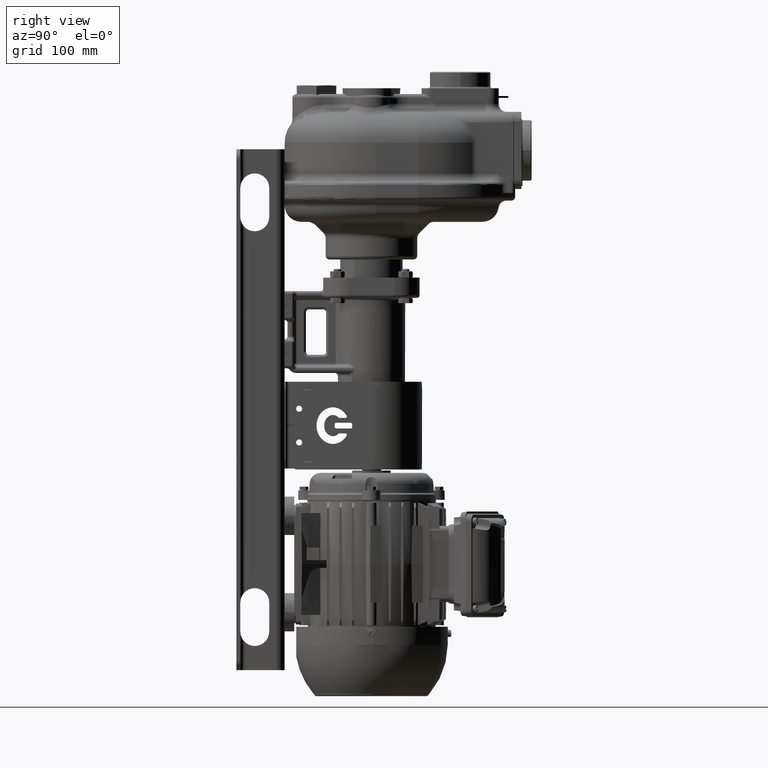
[diagram: clean part render]
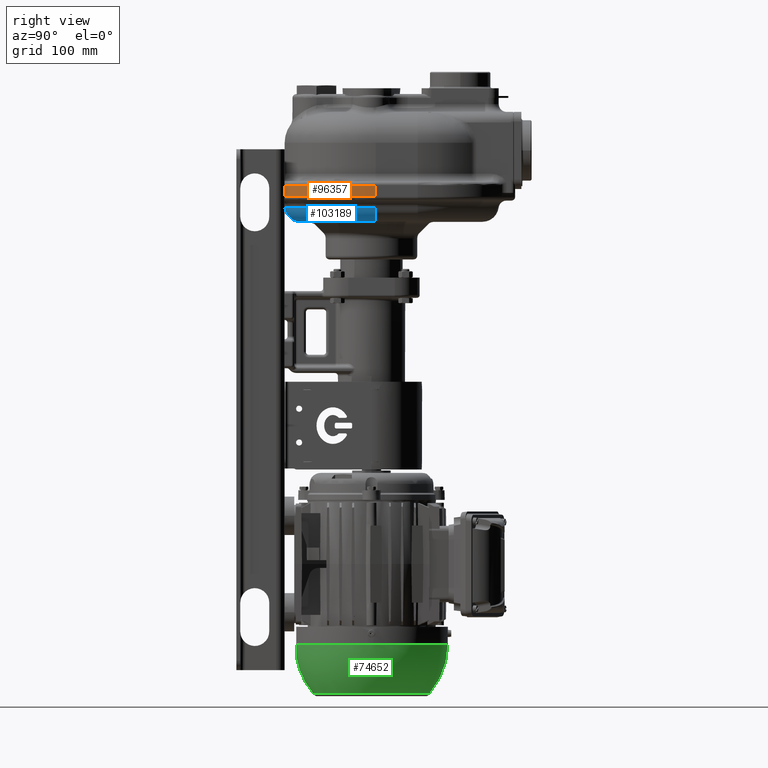
[diagram: same view with three faces highlighted in distinct colors, each labeled with its STEP entity id]
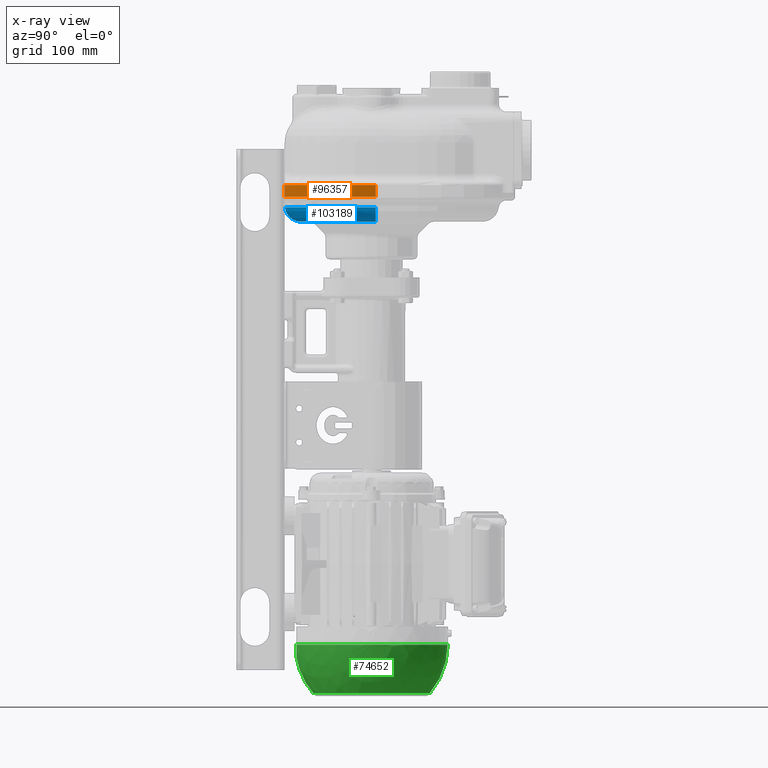
[diagram: x-ray of the same camera — body ghosted, the three highlighted faces saturated]
A machine part, right view with three faces highlighted in distinct colors.
The next image is the same camera in x-ray (body ghosted, the three faces saturated) — at least one of them is partly hidden behind the body in this view.
Their STEP definitions:

[orange] entity #96357 — the highlighted cylindrical surface (partial cylindrical patch) has radius 116.5 mm, axis along (0, 0, -1).
#37459=DIRECTION('',(0.E0,0.E0,-1.E0));
#37460=VECTOR('',#37459,1.2E1);
#37461=CARTESIAN_POINT('',(7.263222438758E1,0.E0,1.248E2));
#37462=LINE('',#37461,#37460);
#37463=CARTESIAN_POINT('',(4.5E0,9.45E1,1.248E2));
#37464=DIRECTION('',(0.E0,0.E0,1.E0));
#37465=DIRECTION('',(5.848259604084E-1,-8.111587982833E-1,0.E0));
#37466=AXIS2_PLACEMENT_3D('',#37463,#37464,#37465);
#37468=DIRECTION('',(0.E0,0.E0,-1.E0));
#37469=VECTOR('',#37468,1.2E1);
#37470=CARTESIAN_POINT('',(1.21E2,9.45E1,1.248E2));
#37471=LINE('',#37470,#37469);
#37472=CARTESIAN_POINT('',(4.5E0,9.45E1,1.128E2));
#37473=DIRECTION('',(0.E0,0.E0,-1.E0));
#37474=DIRECTION('',(1.E0,0.E0,0.E0));
#37475=AXIS2_PLACEMENT_3D('',#37472,#37473,#37474);
#50691=CARTESIAN_POINT('',(1.21E2,9.45E1,1.128E2));
#50692=VERTEX_POINT('',#50691);
#50705=CARTESIAN_POINT('',(1.21E2,9.45E1,1.248E2));
#50707=VERTEX_POINT('',#50705);
#57659=CARTESIAN_POINT('',(7.263222438758E1,0.E0,1.248E2));
#57660=CARTESIAN_POINT('',(7.263222438758E1,0.E0,1.128E2));
#57661=VERTEX_POINT('',#57659);
#57662=VERTEX_POINT('',#57660);
#96343=CARTESIAN_POINT('',(4.5E0,9.45E1,1.188E2));
#96344=DIRECTION('',(0.E0,0.E0,-1.E0));
#96345=DIRECTION('',(7.108433734940E-1,-7.033503382808E-1,0.E0));
#96346=AXIS2_PLACEMENT_3D('',#96343,#96344,#96345);
#96347=CYLINDRICAL_SURFACE('',#96346,1.165E2);
#96348=ORIENTED_EDGE('',*,*,#59122,.F.);
#96350=ORIENTED_EDGE('',*,*,#96349,.T.);
#96352=ORIENTED_EDGE('',*,*,#96351,.T.);
#96354=ORIENTED_EDGE('',*,*,#96353,.T.);
#96355=EDGE_LOOP('',(#96348,#96350,#96352,#96354));
#96356=FACE_OUTER_BOUND('',#96355,.F.);
#96357=ADVANCED_FACE('',(#96356),#96347,.T.);
#37467=CIRCLE('',#37466,1.165E2);
#37476=CIRCLE('',#37475,1.165E2);
#59122=EDGE_CURVE('',#57661,#57662,#37462,.T.);
#96349=EDGE_CURVE('',#57661,#50707,#37467,.T.);
#96351=EDGE_CURVE('',#50707,#50692,#37471,.T.);
#96353=EDGE_CURVE('',#50692,#57662,#37476,.T.);

[blue] entity #103189 — the highlighted toroidal blend (fillet) surface has major radius 77.5 mm and minor (blend) radius 17 mm.
#42454=CARTESIAN_POINT('',(4.5E0,1.7E1,1.038E2));
#42455=DIRECTION('',(-1.E0,0.E0,0.E0));
#42456=DIRECTION('',(0.E0,0.E0,-1.E0));
#42457=AXIS2_PLACEMENT_3D('',#42454,#42455,#42456);
#42508=CARTESIAN_POINT('',(4.5E0,9.45E1,1.0176E2));
#42509=DIRECTION('',(0.E0,0.E0,1.E0));
#42510=DIRECTION('',(0.E0,-1.E0,0.E0));
#42511=AXIS2_PLACEMENT_3D('',#42508,#42509,#42510);
#42513=CARTESIAN_POINT('',(8.2E1,9.45E1,1.038E2));
#42514=DIRECTION('',(0.E0,-1.E0,0.E0));
#42515=DIRECTION('',(0.E0,0.E0,-1.E0));
#42516=AXIS2_PLACEMENT_3D('',#42513,#42514,#42515);
#42523=CARTESIAN_POINT('',(4.5E0,9.45E1,8.68E1));
#42524=DIRECTION('',(0.E0,0.E0,-1.E0));
#42525=DIRECTION('',(1.E0,0.E0,0.E0));
#42526=AXIS2_PLACEMENT_3D('',#42523,#42524,#42525);
#50611=CARTESIAN_POINT('',(8.2E1,9.45E1,8.68E1));
#50612=VERTEX_POINT('',#50611);
#50613=CARTESIAN_POINT('',(4.5E0,1.7E1,8.68E1));
#50614=VERTEX_POINT('',#50613);
#50626=CARTESIAN_POINT('',(4.5E0,1.228438414524E-1,1.0176E2));
#50628=VERTEX_POINT('',#50626);
#50629=CARTESIAN_POINT('',(9.887715615855E1,9.45E1,1.0176E2));
#50630=VERTEX_POINT('',#50629);
#103177=CARTESIAN_POINT('',(4.5E0,9.45E1,1.038E2));
#103178=DIRECTION('',(0.E0,0.E0,-1.E0));
#103179=DIRECTION('',(9.999999867615E-1,1.627174595994E-4,0.E0));
#103180=AXIS2_PLACEMENT_3D('',#103177,#103178,#103179);
#103181=TOROIDAL_SURFACE('',#103180,7.75E1,1.7E1);
#103182=ORIENTED_EDGE('',*,*,#102863,.T.);
#103183=ORIENTED_EDGE('',*,*,#102894,.F.);
#103185=ORIENTED_EDGE('',*,*,#103184,.T.);
#103186=ORIENTED_EDGE('',*,*,#103154,.T.);
#103187=EDGE_LOOP('',(#103182,#103183,#103185,#103186));
#103188=FACE_OUTER_BOUND('',#103187,.F.);
#103189=ADVANCED_FACE('',(#103188),#103181,.T.);
#42458=CIRCLE('',#42457,1.7E1);
#42512=CIRCLE('',#42511,9.437715615855E1);
#42517=CIRCLE('',#42516,1.7E1);
#42527=CIRCLE('',#42526,7.75E1);
#102863=EDGE_CURVE('',#50628,#50630,#42512,.T.);
#102894=EDGE_CURVE('',#50612,#50630,#42517,.T.);
#103154=EDGE_CURVE('',#50614,#50628,#42458,.T.);
#103184=EDGE_CURVE('',#50612,#50614,#42527,.T.);

[green] entity #74652 — the highlighted spherical surface has radius 79.0899 mm.
#18882=CARTESIAN_POINT('',(2.131628207280E-14,1.2E1,-3.51E2));
#18883=DIRECTION('',(0.E0,1.E0,0.E0));
#18884=DIRECTION('',(9.986079289839E-1,0.E0,-5.274660340198E-2));
#18885=AXIS2_PLACEMENT_3D('',#18882,#18883,#18884);
#18892=CARTESIAN_POINT('',(7.908689326264E1,9.E1,-3.516901808615E2));
#18893=CARTESIAN_POINT('',(7.908682987687E1,8.997899000365E1,
-3.516974441507E2));
#18894=CARTESIAN_POINT('',(7.908669623117E1,8.993555144664E1,-3.517108396E2));
#18895=CARTESIAN_POINT('',(7.908646375481E1,8.986626048210E1,
-3.517276709700E2));
#18896=CARTESIAN_POINT('',(7.908619109393E1,8.979246872316E1,
-3.517408457848E2));
#18897=CARTESIAN_POINT('',(7.908586553230E1,8.971350572975E1,
-3.517500882727E2));
#18898=CARTESIAN_POINT('',(7.908547230643E1,8.962863757423E1,
-3.517550067064E2));
#18899=CARTESIAN_POINT('',(7.908498368785E1,8.953564068762E1,
-3.517550125398E2));
#18900=CARTESIAN_POINT('',(7.908437343722E1,8.943357925235E1,
-3.517494618817E2));
#18901=CARTESIAN_POINT('',(7.908353869046E1,8.931262413936E1,
-3.517362757950E2));
#18902=CARTESIAN_POINT('',(7.908249760626E1,8.918499617632E1,
-3.517160922829E2));
#18903=CARTESIAN_POINT('',(7.908149202691E1,8.907788402035E1,
-3.516954125256E2));
#18904=CARTESIAN_POINT('',(7.908049172536E1,8.898370844721E1,
-3.516774183077E2));
#18905=CARTESIAN_POINT('',(7.907940585956E1,8.889553169216E1,
-3.516662462688E2));
#18906=CARTESIAN_POINT('',(7.907821495128E1,8.880987348656E1,
-3.516600249766E2));
#18907=CARTESIAN_POINT('',(7.907706065764E1,8.873472212557E1,
-3.516582850464E2));
#18908=CARTESIAN_POINT('',(7.907587626701E1,8.866335687528E1,
-3.516593842735E2));
#18909=CARTESIAN_POINT('',(7.907465218841E1,8.859443800190E1,
-3.516627008776E2));
#18910=CARTESIAN_POINT('',(7.907331161149E1,8.852331500502E1,
-3.516678993200E2));
#18911=CARTESIAN_POINT('',(7.907176615173E1,8.844568769889E1,
-3.516749766195E2));
#18912=CARTESIAN_POINT('',(7.906987029534E1,8.835556362819E1,
-3.516835350514E2));
#18913=CARTESIAN_POINT('',(7.906798401749E1,8.827016627343E1,
-3.516905195795E2));
#18914=CARTESIAN_POINT('',(7.906618451340E1,8.819092448620E1,
-3.516934111742E2));
#18915=CARTESIAN_POINT('',(7.906439022785E1,8.811347684294E1,
-3.516914497047E2));
#18916=CARTESIAN_POINT('',(7.906271643080E1,8.804298901811E1,
-3.516867175382E2));
#18917=CARTESIAN_POINT('',(7.906103769609E1,8.797481014122E1,
-3.516823390514E2));
#18918=CARTESIAN_POINT('',(7.905923927455E1,8.790501932797E1,
-3.516801377521E2));
#18919=CARTESIAN_POINT('',(7.905725228952E1,8.783090572760E1,
-3.516789812662E2));
#18920=CARTESIAN_POINT('',(7.905508242865E1,8.775315011533E1,
-3.516787874327E2));
#18921=CARTESIAN_POINT('',(7.905286367264E1,8.767667863027E1,
-3.516797713957E2));
#18922=CARTESIAN_POINT('',(7.905039435942E1,8.759459559941E1,
-3.516817702114E2));
#18923=CARTESIAN_POINT('',(7.904744498420E1,8.750015850923E1,
-3.516847119034E2));
#18924=CARTESIAN_POINT('',(7.904382279585E1,8.738899038515E1,
-3.516887302257E2));
#18925=CARTESIAN_POINT('',(7.903975076316E1,8.726912717024E1,
-3.516913474312E2));
#18926=CARTESIAN_POINT('',(7.903571848529E1,8.715475497385E1,
-3.516903078374E2));
#18927=CARTESIAN_POINT('',(7.903222266385E1,8.705900620493E1,
-3.516884638516E2));
#18928=CARTESIAN_POINT('',(7.902898426705E1,8.697292777744E1,
-3.516870035254E2));
#18929=CARTESIAN_POINT('',(7.902555557257E1,8.688453899841E1,
-3.516865557557E2));
#18930=CARTESIAN_POINT('',(7.902157546948E1,8.678505884697E1,
-3.516868144999E2));
#18931=CARTESIAN_POINT('',(7.901674063522E1,8.666833341527E1,
-3.516876008008E2));
#18932=CARTESIAN_POINT('',(7.901120680877E1,8.653973802312E1,
-3.516891218008E2));
#18933=CARTESIAN_POINT('',(7.900471405021E1,8.639451662746E1,
-3.516906622616E2));
#18934=CARTESIAN_POINT('',(7.899697094737E1,8.622847495049E1,
-3.516902995012E2));
#18935=CARTESIAN_POINT('',(7.898910173939E1,8.606705923127E1,
-3.516892316936E2));
#18936=CARTESIAN_POINT('',(7.898134696563E1,8.591429198482E1,
-3.516886086602E2));
#18937=CARTESIAN_POINT('',(7.897359808070E1,8.576718134135E1,
-3.516889656720E2));
#18938=CARTESIAN_POINT('',(7.896470189765E1,8.560413063590E1,
-3.516898454020E2));
#18939=CARTESIAN_POINT('',(7.895380126724E1,8.541235236724E1,
-3.516906325273E2));
#18940=CARTESIAN_POINT('',(7.894192635619E1,8.521225595462E1,
-3.516902720910E2));
#18941=CARTESIAN_POINT('',(7.892932372475E1,8.500863545662E1,
-3.516892807466E2));
#18942=CARTESIAN_POINT('',(7.891597948701E1,8.480184845467E1,
-3.516896263448E2));
#18943=CARTESIAN_POINT('',(7.890082995039E1,8.457645875736E1,
-3.516904046557E2));
#18944=CARTESIAN_POINT('',(7.888266003881E1,8.431772081859E1,
-3.516899988363E2));
#18945=CARTESIAN_POINT('',(7.886103270877E1,8.402444133799E1,
-3.516897558218E2));
#18946=CARTESIAN_POINT('',(7.883526014692E1,8.369288933269E1,
-3.516903072801E2));
#18947=CARTESIAN_POINT('',(7.880450730851E1,8.331868593147E1,
-3.516898919632E2));
#18948=CARTESIAN_POINT('',(7.876738106705E1,8.289331966384E1,
-3.516901444224E2));
#18949=CARTESIAN_POINT('',(7.872267996120E1,8.241293295785E1,
-3.516902730432E2));
#18950=CARTESIAN_POINT('',(7.866856615241E1,8.186942997381E1,
-3.516899420197E2));
#18951=CARTESIAN_POINT('',(7.860271426764E1,8.125395252241E1,
-3.516902189152E2));
#18952=CARTESIAN_POINT('',(7.852282709654E1,8.056156437867E1,
-3.516902462252E2));
#18953=CARTESIAN_POINT('',(7.842555332448E1,7.978239233898E1,
-3.516901989612E2));
#18954=CARTESIAN_POINT('',(7.830714418676E1,7.890868171206E1,
-3.516902005105E2));
#18955=CARTESIAN_POINT('',(7.816284783154E1,7.793059703707E1,
-3.516902091577E2));
#18956=CARTESIAN_POINT('',(7.798597530537E1,7.683228242591E1,
-3.516901935847E2));
#18957=CARTESIAN_POINT('',(7.776746155738E1,7.559329971117E1,
-3.516901400151E2));
#18958=CARTESIAN_POINT('',(7.749456903589E1,7.418473427657E1,
-3.516902094501E2));
#18959=CARTESIAN_POINT('',(7.715145316447E1,7.258294807775E1,
-3.516901744396E2));
#18960=CARTESIAN_POINT('',(7.675562772584E1,7.091371074955E1,
-3.516901748782E2));
#18961=CARTESIAN_POINT('',(7.632806126970E1,6.927026314869E1,
-3.516901757550E2));
#18962=CARTESIAN_POINT('',(7.586483582699E1,6.763419777764E1,
-3.516901767705E2));
#18963=CARTESIAN_POINT('',(7.536625456212E1,6.600774736345E1,
-3.516901784005E2));
#18964=CARTESIAN_POINT('',(7.483307485766E1,6.439313525870E1,
-3.516901788519E2));
#18965=CARTESIAN_POINT('',(7.426516894339E1,6.278997398675E1,
-3.516901794485E2));
#18966=CARTESIAN_POINT('',(7.366298211758E1,6.119955329552E1,
-3.516901799330E2));
#18967=CARTESIAN_POINT('',(7.302671807411E1,5.962238985457E1,
-3.516901803337E2));
#18968=CARTESIAN_POINT('',(7.235669813731E1,5.805929011690E1,
-3.516901805723E2));
#18969=CARTESIAN_POINT('',(7.165322316339E1,5.651095197430E1,
-3.516901806848E2));
#18970=CARTESIAN_POINT('',(7.091662101596E1,5.497809848205E1,
-3.516901807275E2));
#18971=CARTESIAN_POINT('',(7.014723157635E1,5.346143645372E1,
-3.516901807652E2));
#18972=CARTESIAN_POINT('',(6.934541069907E1,5.196166751468E1,
-3.516901808091E2));
#18973=CARTESIAN_POINT('',(6.851152907950E1,5.047948499144E1,
-3.516901808606E2));
#18974=CARTESIAN_POINT('',(6.764597224256E1,4.901557414575E1,
-3.516901809150E2));
#18975=CARTESIAN_POINT('',(6.674914036956E1,4.757061179907E1,
-3.516901809659E2));
#18976=CARTESIAN_POINT('',(6.582144809429E1,4.614526600361E1,
-3.516901810067E2));
#18977=CARTESIAN_POINT('',(6.486332432112E1,4.474019574614E1,
-3.516901810328E2));
#18978=CARTESIAN_POINT('',(6.387521202431E1,4.335605063970E1,
-3.516901810389E2));
#18979=CARTESIAN_POINT('',(6.285756803964E1,4.199347061875E1,
-3.516901810299E2));
#18980=CARTESIAN_POINT('',(6.181086286004E1,4.065308565269E1,
-3.516901810201E2));
#18981=CARTESIAN_POINT('',(6.073558041263E1,3.933551544669E1,
-3.516901810134E2));
#18982=CARTESIAN_POINT('',(5.963221783727E1,3.804136915851E1,
-3.516901810111E2));
#18983=CARTESIAN_POINT('',(5.850128525580E1,3.677124511570E1,
-3.516901810121E2));
#18984=CARTESIAN_POINT('',(5.734330553660E1,3.552573053957E1,
-3.516901810146E2));
#18985=CARTESIAN_POINT('',(5.615881405382E1,3.430540127467E1,
-3.516901810163E2));
#18986=CARTESIAN_POINT('',(5.494835843836E1,3.311082152080E1,
-3.516901810152E2));
#18987=CARTESIAN_POINT('',(5.371249832385E1,3.194254357166E1,
-3.516901810092E2));
#18988=CARTESIAN_POINT('',(5.245180509163E1,3.080110756305E1,
-3.516901809984E2));
#18989=CARTESIAN_POINT('',(5.116686160274E1,2.968704121937E1,
-3.516901809875E2));
#18990=CARTESIAN_POINT('',(4.985826193046E1,2.860085961160E1,
-3.516901809780E2));
#18991=CARTESIAN_POINT('',(4.852661108495E1,2.754306491845E1,
-3.516901809704E2));
#18992=CARTESIAN_POINT('',(4.717252473370E1,2.651414619439E1,
-3.516901809647E2));
#18993=CARTESIAN_POINT('',(4.579662891704E1,2.551457914366E1,
-3.516901809602E2));
#18994=CARTESIAN_POINT('',(4.439955975847E1,2.454482590013E1,
-3.516901809560E2));
#18995=CARTESIAN_POINT('',(4.298196317065E1,2.360533481375E1,
-3.516901809512E2));
#18996=CARTESIAN_POINT('',(4.154449455681E1,2.269654024328E1,
-3.516901809450E2));
#18997=CARTESIAN_POINT('',(4.008781850762E1,2.181886235536E1,
-3.516901809369E2));
#18998=CARTESIAN_POINT('',(3.861260849410E1,2.097270693045E1,
-3.516901809287E2));
#18999=CARTESIAN_POINT('',(3.711954655604E1,2.015846517500E1,
-3.516901809213E2));
#19000=CARTESIAN_POINT('',(3.560932298688E1,1.937651354073E1,
-3.516901809150E2));
#19001=CARTESIAN_POINT('',(3.408263601447E1,1.862721355054E1,
-3.516901809096E2));
#19002=CARTESIAN_POINT('',(3.254019147814E1,1.791091163133E1,
-3.516901809051E2));
#19003=CARTESIAN_POINT('',(3.098270250262E1,1.722793895388E1,
-3.516901809010E2));
#19004=CARTESIAN_POINT('',(2.941088916806E1,1.657861127970E1,
-3.516901808970E2));
#19005=CARTESIAN_POINT('',(2.782547817680E1,1.596322881494E1,
-3.516901808925E2));
#19006=CARTESIAN_POINT('',(2.622720252126E1,1.538207607286E1,
-3.516901808872E2));
#19007=CARTESIAN_POINT('',(2.461680113168E1,1.483542173779E1,
-3.516901808820E2));
#19008=CARTESIAN_POINT('',(2.299501856204E1,1.432351855015E1,
-3.516901808770E2));
#19009=CARTESIAN_POINT('',(2.136260460790E1,1.384660317706E1,
-3.516901808738E2));
#19010=CARTESIAN_POINT('',(1.972031399449E1,1.340489611424E1,
-3.516901808683E2));
#19011=CARTESIAN_POINT('',(1.806890600776E1,1.299860157767E1,
-3.516901808708E2));
#19012=CARTESIAN_POINT('',(1.640914415016E1,1.262790741119E1,
-3.516901808584E2));
#19013=CARTESIAN_POINT('',(1.474179580742E1,1.229298500357E1,
-3.516901808713E2));
#19014=CARTESIAN_POINT('',(1.362568648454E1,1.209365446394E1,
-3.516901808654E2));
#19015=CARTESIAN_POINT('',(1.306662488693E1,1.2E1,-3.516901808615E2));
#19017=CARTESIAN_POINT('',(0.E0,1.690868932626E2,-3.516901808615E2));
#19018=CARTESIAN_POINT('',(5.640218381500E-1,1.690868932626E2,
-3.516901808645E2));
#19019=CARTESIAN_POINT('',(1.692065512500E0,1.690748255448E2,
-3.516901808687E2));
#19020=CARTESIAN_POINT('',(3.383356509321E0,1.690205291009E2,
-3.516901808560E2));
#19021=CARTESIAN_POINT('',(5.073098864071E0,1.689300626414E2,
-3.516901808662E2));
#19022=CARTESIAN_POINT('',(6.760519112154E0,1.688034675759E2,
-3.516901808633E2));
#19023=CARTESIAN_POINT('',(8.444844869898E0,1.686408018511E2,
-3.516901808676E2));
#19024=CARTESIAN_POINT('',(1.012530517780E1,1.684421399231E2,
-3.516901808698E2));
#19025=CARTESIAN_POINT('',(1.180113083418E1,1.682075727259E2,
-3.516901808734E2));
#19026=CARTESIAN_POINT('',(1.347155476835E1,1.679372076274E2,
-3.516901808768E2));
#19027=CARTESIAN_POINT('',(1.513581237171E1,1.676311683828E2,
-3.516901808797E2));
#19028=CARTESIAN_POINT('',(1.679314187592E1,1.672895950732E2,
-3.516901808818E2));
#19029=CARTESIAN_POINT('',(1.844278466349E1,1.669126440482E2,
-3.516901808836E2));
#19030=CARTESIAN_POINT('',(2.008398564708E1,1.665004878491E2,
-3.516901808854E2));
#19031=CARTESIAN_POINT('',(2.171599360152E1,1.660533151317E2,
-3.516901808872E2));
#19032=CARTESIAN_POINT('',(2.333806150819E1,1.655713305802E2,
-3.516901808892E2));
#19033=CARTESIAN_POINT('',(2.494944689957E1,1.650547548129E2,
-3.516901808913E2));
#19034=CARTESIAN_POINT('',(2.654941219688E1,1.645038242818E2,
-3.516901808932E2));
#19035=CARTESIAN_POINT('',(2.813722504907E1,1.639187911641E2,
-3.516901808944E2));
#19036=CARTESIAN_POINT('',(2.971215866775E1,1.632999232463E2,
-3.516901808937E2));
#19037=CARTESIAN_POINT('',(3.127349215945E1,1.626475038028E2,
-3.516901808916E2));
#19038=CARTESIAN_POINT('',(3.282051085612E1,1.619618314648E2,
-3.516901808886E2));
#19039=CARTESIAN_POINT('',(3.435250664184E1,1.612432200848E2,
-3.516901808851E2));
#19040=CARTESIAN_POINT('',(3.586877827721E1,1.604919985923E2,
-3.516901808815E2));
#19041=CARTESIAN_POINT('',(3.736863172020E1,1.597085108434E2,
-3.516901808779E2));
#19042=CARTESIAN_POINT('',(3.885138044384E1,1.588931154634E2,
-3.516901808740E2));
#19043=CARTESIAN_POINT('',(4.031634575059E1,1.580461856827E2,
-3.516901808693E2));
#19044=CARTESIAN_POINT('',(4.176285708281E1,1.571681091660E2,
-3.516901808620E2));
#19045=CARTESIAN_POINT('',(4.319025232979E1,1.562592878347E2,
-3.516901808509E2));
#19046=CARTESIAN_POINT('',(4.459787813105E1,1.553201376828E2,
-3.516901808375E2));
#19047=CARTESIAN_POINT('',(4.598509017423E1,1.543510885874E2,
-3.516901808225E2));
#19048=CARTESIAN_POINT('',(4.735125349312E1,1.533525841096E2,
-3.516901808069E2));
#19049=CARTESIAN_POINT('',(4.869574275306E1,1.523250812955E2,
-3.516901807914E2));
#19050=CARTESIAN_POINT('',(5.001794254191E1,1.512690504631E2,
-3.516901807762E2));
#19051=CARTESIAN_POINT('',(5.131724765272E1,1.501849749867E2,
-3.516901807605E2));
#19052=CARTESIAN_POINT('',(5.259306335176E1,1.490733510824E2,
-3.516901807426E2));
#19053=CARTESIAN_POINT('',(5.384480566280E1,1.479346875714E2,
-3.516901807175E2));
#19054=CARTESIAN_POINT('',(5.507190162614E1,1.467695056539E2,
-3.516901806861E2));
#19055=CARTESIAN_POINT('',(5.627378956395E1,1.455783386677E2,
-3.516901806510E2));
#19056=CARTESIAN_POINT('',(5.744991933700E1,1.443617318449E2,
-3.516901806147E2));
#19057=CARTESIAN_POINT('',(5.859975259587E1,1.431202420623E2,
-3.516901805797E2));
#19058=CARTESIAN_POINT('',(5.972276302832E1,1.418544375860E2,
-3.516901805481E2));
#19059=CARTESIAN_POINT('',(6.081843659988E1,1.405648978114E2,
-3.516901805206E2));
#19060=CARTESIAN_POINT('',(6.188627178787E1,1.392522129997E2,
-3.516901804955E2));
#19061=CARTESIAN_POINT('',(6.292577981216E1,1.379169840061E2,
-3.516901804642E2));
#19062=CARTESIAN_POINT('',(6.393648486137E1,1.365598220019E2,
-3.516901804177E2));
#19063=CARTESIAN_POINT('',(6.491792430473E1,1.351813482016E2,
-3.516901803643E2));
#19064=CARTESIAN_POINT('',(6.586964890862E1,1.337821935731E2,
-3.516901803119E2));
#19065=CARTESIAN_POINT('',(6.679122304091E1,1.323629985503E2,
-3.516901802709E2));
#19066=CARTESIAN_POINT('',(6.768222486934E1,1.309244127414E2,
-3.516901802529E2));
#19067=CARTESIAN_POINT('',(6.854224655643E1,1.294670946295E2,
-3.516901802696E2));
#19068=CARTESIAN_POINT('',(6.937089444590E1,1.279917112683E2,
-3.516901803282E2));
#19069=CARTESIAN_POINT('',(7.016778922796E1,1.264989380160E2,
-3.516901804288E2));
#19070=CARTESIAN_POINT('',(7.093256620532E1,1.249894580150E2,
-3.516901805327E2));
#19071=CARTESIAN_POINT('',(7.166487507412E1,1.234639627397E2,
-3.516901806448E2));
#19072=CARTESIAN_POINT('',(7.236438141445E1,1.219231487063E2,
-3.516901808130E2));
#19073=CARTESIAN_POINT('',(7.303076281501E1,1.203677262164E2,
-3.516901810329E2));
#19074=CARTESIAN_POINT('',(7.366371982445E1,1.187983948122E2,
-3.516901813639E2));
#19075=CARTESIAN_POINT('',(7.426295140902E1,1.172158960160E2,
-3.516901818386E2));
#19076=CARTESIAN_POINT('',(7.482819719880E1,1.156209407531E2,
-3.516901824679E2));
#19077=CARTESIAN_POINT('',(7.535921936275E1,1.140141096778E2,
-3.516901834111E2));
#19078=CARTESIAN_POINT('',(7.585554580318E1,1.123971329545E2,
-3.516901842856E2));
#19079=CARTESIAN_POINT('',(7.631798005449E1,1.107665232514E2,
-3.516901873887E2));
#19080=CARTESIAN_POINT('',(7.674284241570E1,1.091373402079E2,
-3.516901822729E2));
#19081=CARTESIAN_POINT('',(7.713943173452E1,1.074702547120E2,
-3.516901982745E2));
#19082=CARTESIAN_POINT('',(7.748375075025E1,1.058682151296E2,
-3.516901478528E2));
#19083=CARTESIAN_POINT('',(7.775735915173E1,1.044608939447E2,
-3.516901890554E2));
#19084=CARTESIAN_POINT('',(7.797489938979E1,1.032329369081E2,
-3.516901716468E2));
#19085=CARTESIAN_POINT('',(7.815245113356E1,1.021364680246E2,
-3.516901312717E2));
#19086=CARTESIAN_POINT('',(7.829631382325E1,1.011671544733E2,
-3.516901834128E2));
#19087=CARTESIAN_POINT('',(7.841348288930E1,1.003093009144E2,
-3.516902093981E2));
#19088=CARTESIAN_POINT('',(7.850881995880E1,9.955358884153E1,
-3.516902260493E2));
#19089=CARTESIAN_POINT('',(7.858663244763E1,9.888867419231E1,
-3.516901524922E2));
#19090=CARTESIAN_POINT('',(7.865028828066E1,9.830477760113E1,
-3.516900895238E2));
#19091=CARTESIAN_POINT('',(7.870255152886E1,9.779246563866E1,
-3.516900279357E2));
#19092=CARTESIAN_POINT('',(7.874568849782E1,9.734255308116E1,
-3.516899116745E2));
#19093=CARTESIAN_POINT('',(7.878142645702E1,9.694761273750E1,
-3.516902179477E2));
#19094=CARTESIAN_POINT('',(7.881115422E1,9.660101248826E1,-3.516904054176E2));
#19095=CARTESIAN_POINT('',(7.883583708252E1,9.629875459545E1,
-3.516901087081E2));
#19096=CARTESIAN_POINT('',(7.885679170334E1,9.603043008204E1,
-3.516896477576E2));
#19097=CARTESIAN_POINT('',(7.887558368355E1,9.577921768561E1,
-3.516899575653E2));
#19098=CARTESIAN_POINT('',(7.889249410214E1,9.554324638905E1,
-3.516904340609E2));
#19099=CARTESIAN_POINT('',(7.890705422637E1,9.533168242978E1,
-3.516901358676E2));
#19100=CARTESIAN_POINT('',(7.891974566184E1,9.514032791187E1,
-3.516895182813E2));
#19101=CARTESIAN_POINT('',(7.893166019643E1,9.495404771081E1,
-3.516894070341E2));
#19102=CARTESIAN_POINT('',(7.894338925805E1,9.476346197739E1,
-3.516900491988E2));
#19103=CARTESIAN_POINT('',(7.895492322506E1,9.456829961620E1,
-3.516906488118E2));
#19104=CARTESIAN_POINT('',(7.896614819188E1,9.436989144805E1,
-3.516906042866E2));
#19105=CARTESIAN_POINT('',(7.897583746759E1,9.419078058343E1,
-3.516900947235E2));
#19106=CARTESIAN_POINT('',(7.898346035373E1,9.404435159314E1,
-3.516894701381E2));
#19107=CARTESIAN_POINT('',(7.899016581027E1,9.391121630267E1,
-3.516893030730E2));
#19108=CARTESIAN_POINT('',(7.899686623675E1,9.377348879856E1,
-3.516896089469E2));
#19109=CARTESIAN_POINT('',(7.900355744723E1,9.363062136431E1,
-3.516903040491E2));
#19110=CARTESIAN_POINT('',(7.901008971099E1,9.348556914658E1,
-3.516903244424E2));
#19111=CARTESIAN_POINT('',(7.901617300322E1,9.334473008377E1,
-3.516901195710E2));
#19112=CARTESIAN_POINT('',(7.902143175661E1,9.321787316790E1,
-3.516902543764E2));
#19113=CARTESIAN_POINT('',(7.902602852738E1,9.310280511398E1,
-3.516903366445E2));
#19114=CARTESIAN_POINT('',(7.903017689170E1,9.299536294949E1,
-3.516895913153E2));
#19115=CARTESIAN_POINT('',(7.903383409169E1,9.289724158235E1,
-3.516891550997E2));
#19116=CARTESIAN_POINT('',(7.903694238444E1,9.281092032067E1,
-3.516896872906E2));
#19117=CARTESIAN_POINT('',(7.903959709346E1,9.273502327275E1,
-3.516902735238E2));
#19118=CARTESIAN_POINT('',(7.904191423567E1,9.266715728112E1,
-3.516902826949E2));
#19119=CARTESIAN_POINT('',(7.904396783236E1,9.260566407419E1,
-3.516898059603E2));
#19120=CARTESIAN_POINT('',(7.904576399187E1,9.255058769494E1,
-3.516896592502E2));
#19121=CARTESIAN_POINT('',(7.904731598954E1,9.250181645320E1,
-3.516902728287E2));
#19122=CARTESIAN_POINT('',(7.904865151480E1,9.245909886239E1,
-3.516907244168E2));
#19123=CARTESIAN_POINT('',(7.904982863216E1,9.242085299060E1,
-3.516910458796E2));
#19124=CARTESIAN_POINT('',(7.905090095852E1,9.238563018041E1,
-3.516908346209E2));
#19125=CARTESIAN_POINT('',(7.905191707175E1,9.235186310288E1,
-3.516903337029E2));
#19126=CARTESIAN_POINT('',(7.905293547133E1,9.231829846671E1,
-3.516872388257E2));
#19127=CARTESIAN_POINT('',(7.905390565636E1,9.228593155617E1,
-3.516840461212E2));
#19128=CARTESIAN_POINT('',(7.905480500504E1,9.225549889419E1,
-3.516811323323E2));
#19129=CARTESIAN_POINT('',(7.905564844362E1,9.222638719268E1,
-3.516790299336E2));
#19130=CARTESIAN_POINT('',(7.905644779919E1,9.219810610099E1,
-3.516781129526E2));
#19131=CARTESIAN_POINT('',(7.905723520661E1,9.216959596926E1,
-3.516781420032E2));
#19132=CARTESIAN_POINT('',(7.905804598300E1,9.213963653637E1,
-3.516788273499E2));
#19133=CARTESIAN_POINT('',(7.905891110133E1,9.210706614460E1,
-3.516799850195E2));
#19134=CARTESIAN_POINT('',(7.905986379394E1,9.207064564043E1,
-3.516811579935E2));
#19135=CARTESIAN_POINT('',(7.906091532274E1,9.202969274106E1,
-3.516824499707E2));
#19136=CARTESIAN_POINT('',(7.906206635460E1,9.198369853277E1,
-3.516844411919E2));
#19137=CARTESIAN_POINT('',(7.906331332420E1,9.193210420871E1,
-3.516881119450E2));
#19138=CARTESIAN_POINT('',(7.906469041808E1,9.187350004085E1,
-3.516921529502E2));
#19139=CARTESIAN_POINT('',(7.906624650344E1,9.180630401899E1,
-3.516933107512E2));
#19140=CARTESIAN_POINT('',(7.906796288528E1,9.173072888453E1,
-3.516906158564E2));
#19141=CARTESIAN_POINT('',(7.906982332108E1,9.164648670635E1,
-3.516840503017E2));
#19142=CARTESIAN_POINT('',(7.907182992474E1,9.155131713921E1,
-3.516749258009E2));
#19143=CARTESIAN_POINT('',(7.907368475231E1,9.145752503485E1,
-3.516664924177E2));
#19144=CARTESIAN_POINT('',(7.907523058166E1,9.137371442314E1,
-3.516610035232E2));
#19145=CARTESIAN_POINT('',(7.907667383836E1,9.128957260018E1,
-3.516582692630E2));
#19146=CARTESIAN_POINT('',(7.907811984087E1,9.119706603556E1,
-3.516595081192E2));
#19147=CARTESIAN_POINT('',(7.907940987822E1,9.110426243373E1,
-3.516661824506E2));
#19148=CARTESIAN_POINT('',(7.908049428906E1,9.101628300288E1,
-3.516771781021E2));
#19149=CARTESIAN_POINT('',(7.908152320569E1,9.091925226702E1,
-3.516957939430E2));
#19150=CARTESIAN_POINT('',(7.908253893458E1,9.081063446040E1,
-3.517165613036E2));
#19151=CARTESIAN_POINT('',(7.908357618854E1,9.068261626561E1,
-3.517366471090E2));
#19152=CARTESIAN_POINT('',(7.908439443184E1,9.056342450189E1,
-3.517494347780E2));
#19153=CARTESIAN_POINT('',(7.908499995423E1,9.046179212322E1,
-3.517548583163E2));
#19154=CARTESIAN_POINT('',(7.908548313254E1,9.036947380919E1,
-3.517547498232E2));
#19155=CARTESIAN_POINT('',(7.908587304848E1,9.028507251014E1,
-3.517498004287E2));
#19156=CARTESIAN_POINT('',(7.908619594434E1,9.020654256633E1,
-3.517405711022E2));
#19157=CARTESIAN_POINT('',(7.908646661089E1,9.013312235593E1,
-3.517274512353E2));
#19158=CARTESIAN_POINT('',(7.908669749482E1,9.006416246388E1,
-3.517107112925E2));
#19159=CARTESIAN_POINT('',(7.908683028218E1,9.002091898128E1,
-3.516973977069E2));
#19160=CARTESIAN_POINT('',(7.908689326264E1,9.E1,-3.516901808615E2));
#19162=CARTESIAN_POINT('',(0.E0,9.E1,-3.51E2));
#19163=DIRECTION('',(1.E0,0.E0,0.E0));
#19164=DIRECTION('',(0.E0,7.657834232708E-1,-6.430985528234E-1));
#19165=AXIS2_PLACEMENT_3D('',#19162,#19163,#19164);
#19167=CARTESIAN_POINT('',(0.E0,9.E1,-4.018626032966E2));
#19168=DIRECTION('',(0.E0,0.E0,1.E0));
#19169=DIRECTION('',(1.E0,0.E0,0.E0));
#19170=AXIS2_PLACEMENT_3D('',#19167,#19168,#19169);
#19172=CARTESIAN_POINT('',(0.E0,9.E1,-4.018626032966E2));
#19173=DIRECTION('',(0.E0,0.E0,1.E0));
#19174=DIRECTION('',(0.E0,-1.E0,0.E0));
#19175=AXIS2_PLACEMENT_3D('',#19172,#19173,#19174);
#19177=CARTESIAN_POINT('',(0.E0,9.E1,-3.51E2));
#19178=DIRECTION('',(-1.E0,0.E0,0.E0));
#19179=DIRECTION('',(0.E0,-7.657834232708E-1,-6.430985528234E-1));
#19180=AXIS2_PLACEMENT_3D('',#19177,#19178,#19179);
#19324=CARTESIAN_POINT('',(0.E0,1.690868932626E2,-3.516901808615E2));
#52229=CARTESIAN_POINT('',(0.E0,2.943426198376E1,-4.018626032966E2));
#52230=CARTESIAN_POINT('',(0.E0,1.2E1,-3.640848399133E2));
#52231=VERTEX_POINT('',#52229);
#52232=VERTEX_POINT('',#52230);
#52233=VERTEX_POINT('',#18892);
#52234=VERTEX_POINT('',#19015);
#52243=CARTESIAN_POINT('',(6.056573801624E1,9.E1,-4.018626032966E2));
#52244=CARTESIAN_POINT('',(0.E0,1.505657380162E2,-4.018626032966E2));
#52245=VERTEX_POINT('',#52243);
#52246=VERTEX_POINT('',#52244);
#52248=VERTEX_POINT('',#19324);
#74634=CARTESIAN_POINT('',(0.E0,9.E1,-3.51E2));
#74635=DIRECTION('',(1.E0,0.E0,0.E0));
#74636=DIRECTION('',(0.E0,1.E0,0.E0));
#74637=AXIS2_PLACEMENT_3D('',#74634,#74635,#74636);
#74638=SPHERICAL_SURFACE('',#74637,7.908990476386E1);
#74639=ORIENTED_EDGE('',*,*,#74627,.F.);
#74640=ORIENTED_EDGE('',*,*,#74594,.F.);
#74641=ORIENTED_EDGE('',*,*,#74592,.F.);
#74643=ORIENTED_EDGE('',*,*,#74642,.F.);
#74645=ORIENTED_EDGE('',*,*,#74644,.F.);
#74647=ORIENTED_EDGE('',*,*,#74646,.F.);
#74649=ORIENTED_EDGE('',*,*,#74648,.T.);
#74650=EDGE_LOOP('',(#74639,#74640,#74641,#74643,#74645,#74647,#74649));
#74651=FACE_OUTER_BOUND('',#74650,.F.);
#74652=ADVANCED_FACE('',(#74651),#74638,.T.);
#18886=CIRCLE('',#18885,1.308483991332E1);
#19016=B_SPLINE_CURVE_WITH_KNOTS('',3,(#18892,#18893,#18894,#18895,#18896,
#18897,#18898,#18899,#18900,#18901,#18902,#18903,#18904,#18905,#18906,#18907,
#18908,#18909,#18910,#18911,#18912,#18913,#18914,#18915,#18916,#18917,#18918,
#18919,#18920,#18921,#18922,#18923,#18924,#18925,#18926,#18927,#18928,#18929,
#18930,#18931,#18932,#18933,#18934,#18935,#18936,#18937,#18938,#18939,#18940,
#18941,#18942,#18943,#18944,#18945,#18946,#18947,#18948,#18949,#18950,#18951,
#18952,#18953,#18954,#18955,#18956,#18957,#18958,#18959,#18960,#18961,#18962,
#18963,#18964,#18965,#18966,#18967,#18968,#18969,#18970,#18971,#18972,#18973,
#18974,#18975,#18976,#18977,#18978,#18979,#18980,#18981,#18982,#18983,#18984,
#18985,#18986,#18987,#18988,#18989,#18990,#18991,#18992,#18993,#18994,#18995,
#18996,#18997,#18998,#18999,#19000,#19001,#19002,#19003,#19004,#19005,#19006,
#19007,#19008,#19009,#19010,#19011,#19012,#19013,#19014,#19015),.UNSPECIFIED.,
.F.,.F.,(4,1,1,1,1,1,1,1,1,1,1,1,1,1,1,1,1,1,1,1,1,1,1,1,1,1,1,1,1,1,1,1,1,1,1,
1,1,1,1,1,1,1,1,1,1,1,1,1,1,1,1,1,1,1,1,1,1,1,1,1,1,1,1,1,1,1,1,1,1,1,1,1,1,1,1,
1,1,1,1,1,1,1,1,1,1,1,1,1,1,1,1,1,1,1,1,1,1,1,1,1,1,1,1,1,1,1,1,1,1,1,1,1,1,1,1,
1,1,1,1,1,1,4),(0.E0,8.264462809917E-3,1.652892561983E-2,2.479338842975E-2,
3.305785123967E-2,4.132231404959E-2,4.958677685950E-2,5.785123966942E-2,
6.611570247934E-2,7.438016528926E-2,8.264462809917E-2,9.090909090909E-2,
9.917355371901E-2,1.074380165289E-1,1.157024793388E-1,1.239669421488E-1,
1.322314049587E-1,1.404958677686E-1,1.487603305785E-1,1.570247933884E-1,
1.652892561983E-1,1.735537190083E-1,1.818181818182E-1,1.900826446281E-1,
1.983471074380E-1,2.066115702479E-1,2.148760330579E-1,2.231404958678E-1,
2.314049586777E-1,2.396694214876E-1,2.479338842975E-1,2.561983471074E-1,
2.644628099174E-1,2.727272727273E-1,2.809917355372E-1,2.892561983471E-1,
2.975206611570E-1,3.057851239669E-1,3.140495867769E-1,3.223140495868E-1,
3.305785123967E-1,3.388429752066E-1,3.471074380165E-1,3.553719008264E-1,
3.636363636364E-1,3.719008264463E-1,3.801652892562E-1,3.884297520661E-1,
3.966942148760E-1,4.049586776860E-1,4.132231404959E-1,4.214876033058E-1,
4.297520661157E-1,4.380165289256E-1,4.462809917355E-1,4.545454545455E-1,
4.628099173554E-1,4.710743801653E-1,4.793388429752E-1,4.876033057851E-1,
4.958677685950E-1,5.041322314050E-1,5.123966942149E-1,5.206611570248E-1,
5.289256198347E-1,5.371900826446E-1,5.454545454545E-1,5.537190082645E-1,
5.619834710744E-1,5.702479338843E-1,5.785123966942E-1,5.867768595041E-1,
5.950413223140E-1,6.033057851240E-1,6.115702479339E-1,6.198347107438E-1,
6.280991735537E-1,6.363636363636E-1,6.446280991736E-1,6.528925619835E-1,
6.611570247934E-1,6.694214876033E-1,6.776859504132E-1,6.859504132231E-1,
6.942148760331E-1,7.024793388430E-1,7.107438016529E-1,7.190082644628E-1,
7.272727272727E-1,7.355371900826E-1,7.438016528926E-1,7.520661157025E-1,
7.603305785124E-1,7.685950413223E-1,7.768595041322E-1,7.851239669421E-1,
7.933884297521E-1,8.016528925620E-1,8.099173553719E-1,8.181818181818E-1,
8.264462809917E-1,8.347107438017E-1,8.429752066116E-1,8.512396694215E-1,
8.595041322314E-1,8.677685950413E-1,8.760330578512E-1,8.842975206612E-1,
8.925619834711E-1,9.008264462810E-1,9.090909090909E-1,9.173553719008E-1,
9.256198347107E-1,9.338842975207E-1,9.421487603306E-1,9.504132231405E-1,
9.586776859504E-1,9.669421487603E-1,9.752066115702E-1,9.834710743802E-1,
9.917355371901E-1,1.E0),.UNSPECIFIED.);
#19161=B_SPLINE_CURVE_WITH_KNOTS('',3,(#19017,#19018,#19019,#19020,#19021,
#19022,#19023,#19024,#19025,#19026,#19027,#19028,#19029,#19030,#19031,#19032,
#19033,#19034,#19035,#19036,#19037,#19038,#19039,#19040,#19041,#19042,#19043,
#19044,#19045,#19046,#19047,#19048,#19049,#19050,#19051,#19052,#19053,#19054,
#19055,#19056,#19057,#19058,#19059,#19060,#19061,#19062,#19063,#19064,#19065,
#19066,#19067,#19068,#19069,#19070,#19071,#19072,#19073,#19074,#19075,#19076,
#19077,#19078,#19079,#19080,#19081,#19082,#19083,#19084,#19085,#19086,#19087,
#19088,#19089,#19090,#19091,#19092,#19093,#19094,#19095,#19096,#19097,#19098,
#19099,#19100,#19101,#19102,#19103,#19104,#19105,#19106,#19107,#19108,#19109,
#19110,#19111,#19112,#19113,#19114,#19115,#19116,#19117,#19118,#19119,#19120,
#19121,#19122,#19123,#19124,#19125,#19126,#19127,#19128,#19129,#19130,#19131,
#19132,#19133,#19134,#19135,#19136,#19137,#19138,#19139,#19140,#19141,#19142,
#19143,#19144,#19145,#19146,#19147,#19148,#19149,#19150,#19151,#19152,#19153,
#19154,#19155,#19156,#19157,#19158,#19159,#19160),.UNSPECIFIED.,.F.,.F.,(4,1,1,
1,1,1,1,1,1,1,1,1,1,1,1,1,1,1,1,1,1,1,1,1,1,1,1,1,1,1,1,1,1,1,1,1,1,1,1,1,1,1,1,
1,1,1,1,1,1,1,1,1,1,1,1,1,1,1,1,1,1,1,1,1,1,1,1,1,1,1,1,1,1,1,1,1,1,1,1,1,1,1,1,
1,1,1,1,1,1,1,1,1,1,1,1,1,1,1,1,1,1,1,1,1,1,1,1,1,1,1,1,1,1,1,1,1,1,1,1,1,1,1,1,
1,1,1,1,1,1,1,1,1,1,1,1,1,1,1,1,1,1,4),(0.E0,7.092198581560E-3,
1.418439716312E-2,2.127659574468E-2,2.836879432624E-2,3.546099290780E-2,
4.255319148936E-2,4.964539007092E-2,5.673758865248E-2,6.382978723404E-2,
7.092198581560E-2,7.801418439716E-2,8.510638297872E-2,9.219858156028E-2,
9.929078014184E-2,1.063829787234E-1,1.134751773050E-1,1.205673758865E-1,
1.276595744681E-1,1.347517730496E-1,1.418439716312E-1,1.489361702128E-1,
1.560283687943E-1,1.631205673759E-1,1.702127659574E-1,1.773049645390E-1,
1.843971631206E-1,1.914893617021E-1,1.985815602837E-1,2.056737588652E-1,
2.127659574468E-1,2.198581560284E-1,2.269503546099E-1,2.340425531915E-1,
2.411347517730E-1,2.482269503546E-1,2.553191489362E-1,2.624113475177E-1,
2.695035460993E-1,2.765957446809E-1,2.836879432624E-1,2.907801418440E-1,
2.978723404255E-1,3.049645390071E-1,3.120567375887E-1,3.191489361702E-1,
3.262411347518E-1,3.333333333333E-1,3.404255319149E-1,3.475177304965E-1,
3.546099290780E-1,3.617021276596E-1,3.687943262411E-1,3.758865248227E-1,
3.829787234043E-1,3.900709219858E-1,3.971631205674E-1,4.042553191489E-1,
4.113475177305E-1,4.184397163121E-1,4.255319148936E-1,4.326241134752E-1,
4.397163120567E-1,4.468085106383E-1,4.539007092199E-1,4.609929078014E-1,
4.680851063830E-1,4.751773049645E-1,4.822695035461E-1,4.893617021277E-1,
4.964539007092E-1,5.035460992908E-1,5.106382978723E-1,5.177304964539E-1,
5.248226950355E-1,5.319148936170E-1,5.390070921986E-1,5.460992907801E-1,
5.531914893617E-1,5.602836879433E-1,5.673758865248E-1,5.744680851064E-1,
5.815602836879E-1,5.886524822695E-1,5.957446808511E-1,6.028368794326E-1,
6.099290780142E-1,6.170212765957E-1,6.241134751773E-1,6.312056737589E-1,
6.382978723404E-1,6.453900709220E-1,6.524822695035E-1,6.595744680851E-1,
6.666666666667E-1,6.737588652482E-1,6.808510638298E-1,6.879432624113E-1,
6.950354609929E-1,7.021276595745E-1,7.092198581560E-1,7.163120567376E-1,
7.234042553191E-1,7.304964539007E-1,7.375886524823E-1,7.446808510638E-1,
7.517730496454E-1,7.588652482270E-1,7.659574468085E-1,7.730496453901E-1,
7.801418439716E-1,7.872340425532E-1,7.943262411348E-1,8.014184397163E-1,
8.085106382979E-1,8.156028368794E-1,8.226950354610E-1,8.297872340426E-1,
8.368794326241E-1,8.439716312057E-1,8.510638297872E-1,8.581560283688E-1,
8.652482269504E-1,8.723404255319E-1,8.794326241135E-1,8.865248226950E-1,
8.936170212766E-1,9.007092198582E-1,9.078014184397E-1,9.148936170213E-1,
9.219858156028E-1,9.290780141844E-1,9.361702127660E-1,9.432624113475E-1,
9.503546099291E-1,9.574468085106E-1,9.645390070922E-1,9.716312056738E-1,
9.787234042553E-1,9.858156028369E-1,9.929078014184E-1,1.E0),.UNSPECIFIED.);
#19166=CIRCLE('',#19165,7.908990476386E1);
#19171=CIRCLE('',#19170,6.056573801624E1);
#19176=CIRCLE('',#19175,6.056573801624E1);
#19181=CIRCLE('',#19180,7.908990476386E1);
#74592=EDGE_CURVE('',#52248,#52233,#19161,.T.);
#74594=EDGE_CURVE('',#52233,#52234,#19016,.T.);
#74627=EDGE_CURVE('',#52234,#52232,#18886,.T.);
#74642=EDGE_CURVE('',#52246,#52248,#19166,.T.);
#74644=EDGE_CURVE('',#52245,#52246,#19171,.T.);
#74646=EDGE_CURVE('',#52231,#52245,#19176,.T.);
#74648=EDGE_CURVE('',#52231,#52232,#19181,.T.);